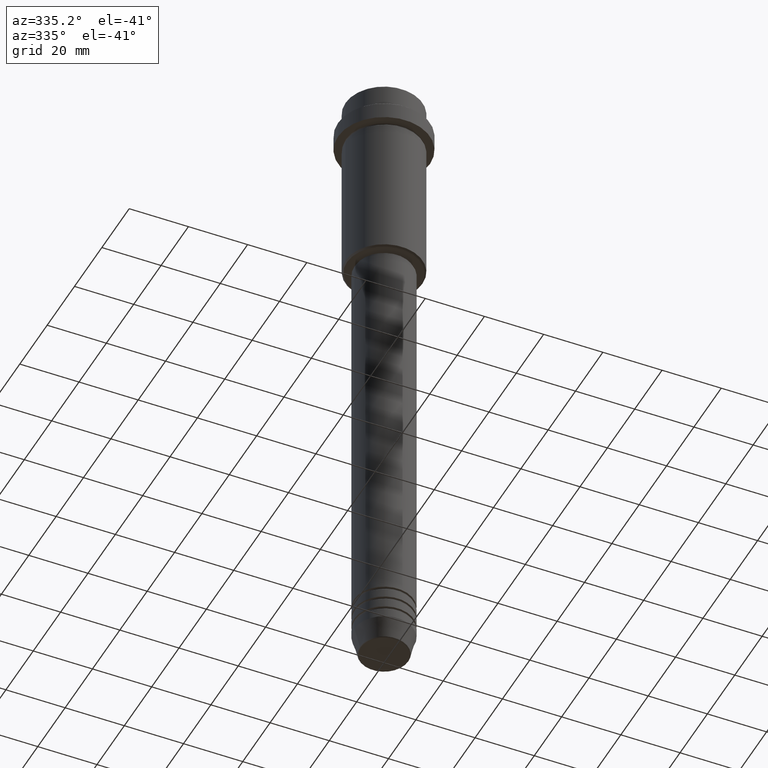
[diagram: clean part render]
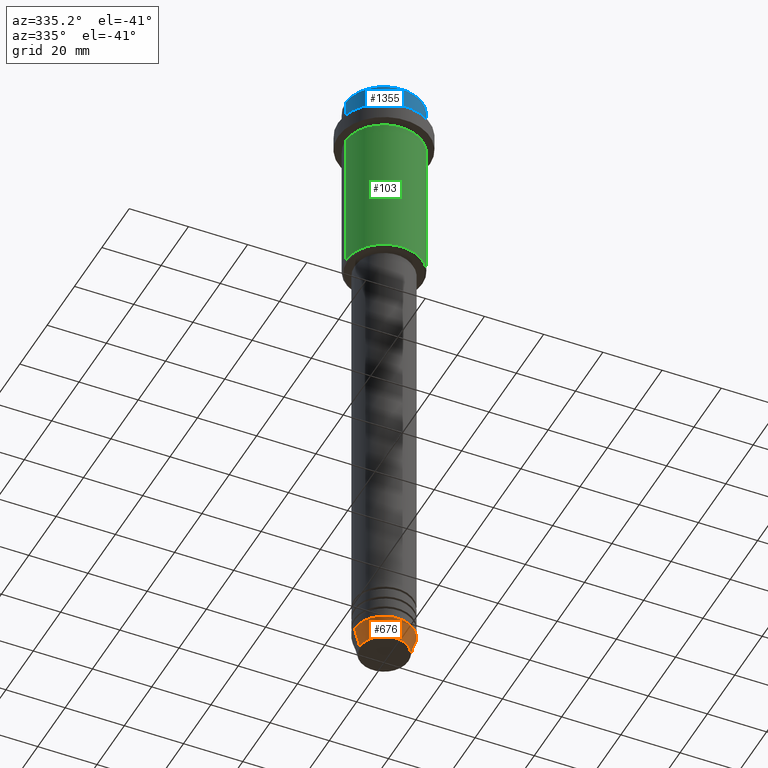
[diagram: same view with three faces highlighted in distinct colors, each labeled with its STEP entity id]
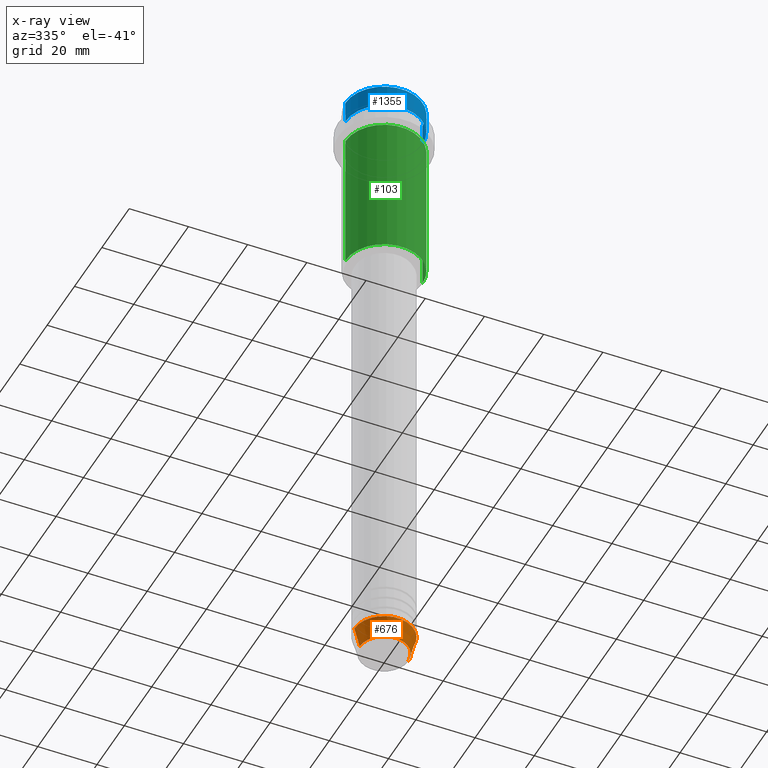
[diagram: x-ray of the same camera — body ghosted, the three highlighted faces saturated]
A machine part, auxiliary view with three faces highlighted in distinct colors.
The next image is the same camera in x-ray (body ghosted, the three faces saturated) — at least one of them is partly hidden behind the body in this view.
Their STEP definitions:

[orange] entity #676 — the highlighted conical surface has half-angle 15 deg.
#16 = AXIS2_PLACEMENT_3D ( 'NONE', #368, #1016, #1325 ) ;
#21 = CARTESIAN_POINT ( 'NONE',  ( 0.000000000000000000, 0.000000000000000000, -212.9999999999999716 ) ) ;
#97 = EDGE_CURVE ( 'NONE', #1226, #273, #600, .T. ) ;
#117 = FACE_OUTER_BOUND ( 'NONE', #973, .T. ) ;
#162 = DIRECTION ( 'NONE',  ( 0.2588190451025214611, 0.000000000000000000, 0.9659258262890679791 ) ) ;
#189 = DIRECTION ( 'NONE',  ( -0.000000000000000000, -0.000000000000000000, 1.000000000000000000 ) ) ;
#273 = VERTEX_POINT ( 'NONE', #342 ) ;
#296 = VECTOR ( 'NONE', #823, 1000.000000000000114 ) ;
#342 = CARTESIAN_POINT ( 'NONE',  ( 10.00000000000000000, 0.000000000000000000, -212.9999999999999716 ) ) ;
#345 = DIRECTION ( 'NONE',  ( 1.000000000000000000, 0.000000000000000000, 0.000000000000000000 ) ) ;
#368 = CARTESIAN_POINT ( 'NONE',  ( 0.000000000000000000, 0.000000000000000000, -219.6294095225512137 ) ) ;
#379 = CARTESIAN_POINT ( 'NONE',  ( -10.00000000000000000, 1.224646799147353256E-15, -212.9999999999999716 ) ) ;
#389 = ORIENTED_EDGE ( 'NONE', *, *, #559, .F. ) ;
#447 = ORIENTED_EDGE ( 'NONE', *, *, #97, .T. ) ;
#472 = ORIENTED_EDGE ( 'NONE', *, *, #1259, .F. ) ;
#478 = AXIS2_PLACEMENT_3D ( 'NONE', #21, #759, #345 ) ;
#544 = CIRCLE ( 'NONE', #1335, 10.00000000000000000 ) ;
#559 = EDGE_CURVE ( 'NONE', #866, #273, #544, .T. ) ;
#589 = VECTOR ( 'NONE', #162, 1000.000000000000114 ) ;
#600 = LINE ( 'NONE', #1352, #589 ) ;
#676 = ADVANCED_FACE ( 'NONE', ( #117 ), #1409, .T. ) ;
#759 = DIRECTION ( 'NONE',  ( -0.000000000000000000, -0.000000000000000000, 1.000000000000000000 ) ) ;
#823 = DIRECTION ( 'NONE',  ( -0.2588190451025214611, 3.169619151431774186E-17, 0.9659258262890679791 ) ) ;
#866 = VERTEX_POINT ( 'NONE', #379 ) ;
#973 = EDGE_LOOP ( 'NONE', ( #472, #1157, #447, #389 ) ) ;
#994 = CARTESIAN_POINT ( 'NONE',  ( -8.223655072137189492, 1.115877042642911856E-15, -219.6294095225512137 ) ) ;
#1016 = DIRECTION ( 'NONE',  ( -0.000000000000000000, -0.000000000000000000, 1.000000000000000000 ) ) ;
#1157 = ORIENTED_EDGE ( 'NONE', *, *, #1373, .T. ) ;
#1168 = CARTESIAN_POINT ( 'NONE',  ( 8.223655072137189492, 0.000000000000000000, -219.6294095225512137 ) ) ;
#1177 = CARTESIAN_POINT ( 'NONE',  ( 0.000000000000000000, 0.000000000000000000, -212.9999999999999716 ) ) ;
#1226 = VERTEX_POINT ( 'NONE', #1168 ) ;
#1248 = CIRCLE ( 'NONE', #16, 8.223655072137189492 ) ;
#1259 = EDGE_CURVE ( 'NONE', #1376, #866, #1389, .T. ) ;
#1281 = CARTESIAN_POINT ( 'NONE',  ( -10.00000000000000000, 1.224646799147353256E-15, -212.9999999999999716 ) ) ;
#1325 = DIRECTION ( 'NONE',  ( 1.000000000000000000, 0.000000000000000000, 0.000000000000000000 ) ) ;
#1335 = AXIS2_PLACEMENT_3D ( 'NONE', #1177, #189, #1393 ) ;
#1352 = CARTESIAN_POINT ( 'NONE',  ( 10.00000000000000000, 0.000000000000000000, -212.9999999999999716 ) ) ;
#1373 = EDGE_CURVE ( 'NONE', #1376, #1226, #1248, .T. ) ;
#1376 = VERTEX_POINT ( 'NONE', #994 ) ;
#1389 = LINE ( 'NONE', #1281, #296 ) ;
#1393 = DIRECTION ( 'NONE',  ( 1.000000000000000000, 0.000000000000000000, 0.000000000000000000 ) ) ;
#1409 = CONICAL_SURFACE ( 'NONE', #478, 10.00000000000000000, 0.2617993877991502405 ) ;

[blue] entity #1355 — the highlighted cylindrical surface (partial cylindrical patch) has radius 13 mm, axis along (-0, -0, 1).
#31 = AXIS2_PLACEMENT_3D ( 'NONE', #1351, #1142, #604 ) ;
#35 = DIRECTION ( 'NONE',  ( 1.000000000000000000, 0.000000000000000000, 0.000000000000000000 ) ) ;
#46 = EDGE_CURVE ( 'NONE', #558, #1021, #431, .T. ) ;
#73 = CARTESIAN_POINT ( 'NONE',  ( -12.99999999999999822, 1.592040838891558898E-15, -0.4999999999999761302 ) ) ;
#188 = VERTEX_POINT ( 'NONE', #1055 ) ;
#221 = CIRCLE ( 'NONE', #31, 12.99999999999999822 ) ;
#298 = EDGE_CURVE ( 'NONE', #188, #663, #993, .T. ) ;
#347 = DIRECTION ( 'NONE',  ( -0.000000000000000000, -0.000000000000000000, 1.000000000000000000 ) ) ;
#408 = EDGE_CURVE ( 'NONE', #188, #558, #1291, .T. ) ;
#421 = CARTESIAN_POINT ( 'NONE',  ( -12.99999999999999822, 1.592040838891558898E-15, 0.000000000000000000 ) ) ;
#431 = LINE ( 'NONE', #1189, #705 ) ;
#463 = CARTESIAN_POINT ( 'NONE',  ( 0.000000000000000000, 0.000000000000000000, 0.000000000000000000 ) ) ;
#475 = VECTOR ( 'NONE', #1201, 1000.000000000000000 ) ;
#502 = ORIENTED_EDGE ( 'NONE', *, *, #408, .T. ) ;
#516 = CARTESIAN_POINT ( 'NONE',  ( 12.99999999999999822, 0.000000000000000000, -0.4999999999999761302 ) ) ;
#521 = AXIS2_PLACEMENT_3D ( 'NONE', #1347, #347, #1230 ) ;
#547 = ORIENTED_EDGE ( 'NONE', *, *, #298, .F. ) ;
#558 = VERTEX_POINT ( 'NONE', #744 ) ;
#604 = DIRECTION ( 'NONE',  ( 1.000000000000000000, 0.000000000000000000, 0.000000000000000000 ) ) ;
#621 = AXIS2_PLACEMENT_3D ( 'NONE', #463, #692, #35 ) ;
#663 = VERTEX_POINT ( 'NONE', #73 ) ;
#692 = DIRECTION ( 'NONE',  ( -0.000000000000000000, -0.000000000000000000, 1.000000000000000000 ) ) ;
#705 = VECTOR ( 'NONE', #864, 1000.000000000000000 ) ;
#743 = ORIENTED_EDGE ( 'NONE', *, *, #46, .T. ) ;
#744 = CARTESIAN_POINT ( 'NONE',  ( 12.99999999999999822, 0.000000000000000000, -7.999999999999998224 ) ) ;
#864 = DIRECTION ( 'NONE',  ( -0.000000000000000000, -0.000000000000000000, 1.000000000000000000 ) ) ;
#891 = EDGE_CURVE ( 'NONE', #1021, #663, #221, .T. ) ;
#906 = CYLINDRICAL_SURFACE ( 'NONE', #621, 12.99999999999999822 ) ;
#939 = ORIENTED_EDGE ( 'NONE', *, *, #891, .T. ) ;
#981 = EDGE_LOOP ( 'NONE', ( #547, #502, #743, #939 ) ) ;
#993 = LINE ( 'NONE', #421, #475 ) ;
#1021 = VERTEX_POINT ( 'NONE', #516 ) ;
#1055 = CARTESIAN_POINT ( 'NONE',  ( -12.99999999999999822, 1.592040838891558898E-15, -7.999999999999998224 ) ) ;
#1142 = DIRECTION ( 'NONE',  ( 0.000000000000000000, 0.000000000000000000, -1.000000000000000000 ) ) ;
#1189 = CARTESIAN_POINT ( 'NONE',  ( 12.99999999999999822, 0.000000000000000000, 0.000000000000000000 ) ) ;
#1201 = DIRECTION ( 'NONE',  ( -0.000000000000000000, -0.000000000000000000, 1.000000000000000000 ) ) ;
#1230 = DIRECTION ( 'NONE',  ( 1.000000000000000000, 0.000000000000000000, 0.000000000000000000 ) ) ;
#1291 = CIRCLE ( 'NONE', #521, 12.99999999999999822 ) ;
#1345 = FACE_OUTER_BOUND ( 'NONE', #981, .T. ) ;
#1347 = CARTESIAN_POINT ( 'NONE',  ( 0.000000000000000000, 0.000000000000000000, -7.999999999999998224 ) ) ;
#1351 = CARTESIAN_POINT ( 'NONE',  ( 0.000000000000000000, 0.000000000000000000, -0.4999999999999761302 ) ) ;
#1355 = ADVANCED_FACE ( 'NONE', ( #1345 ), #906, .T. ) ;

[green] entity #103 — the highlighted cylindrical surface (partial cylindrical patch) has radius 13 mm, axis along (-0, -0, 1).
#9 = VERTEX_POINT ( 'NONE', #69 ) ;
#69 = CARTESIAN_POINT ( 'NONE',  ( -13.00000000000000000, 1.592040838891559095E-15, -64.49999999999997158 ) ) ;
#103 = ADVANCED_FACE ( 'NONE', ( #1143 ), #617, .T. ) ;
#105 = ORIENTED_EDGE ( 'NONE', *, *, #903, .T. ) ;
#150 = VECTOR ( 'NONE', #713, 1000.000000000000000 ) ;
#154 = CARTESIAN_POINT ( 'NONE',  ( 0.000000000000000000, 0.000000000000000000, -64.49999999999997158 ) ) ;
#166 = LINE ( 'NONE', #474, #150 ) ;
#183 = CARTESIAN_POINT ( 'NONE',  ( 13.00000000000000000, 0.000000000000000000, -16.00000000000000000 ) ) ;
#208 = DIRECTION ( 'NONE',  ( -0.000000000000000000, -0.000000000000000000, 1.000000000000000000 ) ) ;
#314 = VERTEX_POINT ( 'NONE', #1080 ) ;
#333 = EDGE_LOOP ( 'NONE', ( #1197, #1087, #105, #400 ) ) ;
#392 = DIRECTION ( 'NONE',  ( 1.000000000000000000, 0.000000000000000000, 0.000000000000000000 ) ) ;
#400 = ORIENTED_EDGE ( 'NONE', *, *, #546, .F. ) ;
#474 = CARTESIAN_POINT ( 'NONE',  ( 13.00000000000000000, 0.000000000000000000, 0.000000000000000000 ) ) ;
#534 = DIRECTION ( 'NONE',  ( -0.000000000000000000, -0.000000000000000000, 1.000000000000000000 ) ) ;
#546 = EDGE_CURVE ( 'NONE', #314, #1088, #570, .T. ) ;
#570 = CIRCLE ( 'NONE', #1357, 13.00000000000000000 ) ;
#617 = CYLINDRICAL_SURFACE ( 'NONE', #1022, 13.00000000000000000 ) ;
#626 = EDGE_CURVE ( 'NONE', #9, #314, #738, .T. ) ;
#688 = VECTOR ( 'NONE', #208, 1000.000000000000000 ) ;
#713 = DIRECTION ( 'NONE',  ( -0.000000000000000000, -0.000000000000000000, 1.000000000000000000 ) ) ;
#738 = LINE ( 'NONE', #1279, #688 ) ;
#853 = EDGE_CURVE ( 'NONE', #9, #887, #1160, .T. ) ;
#887 = VERTEX_POINT ( 'NONE', #921 ) ;
#903 = EDGE_CURVE ( 'NONE', #887, #1088, #166, .T. ) ;
#915 = DIRECTION ( 'NONE',  ( -0.000000000000000000, -0.000000000000000000, 1.000000000000000000 ) ) ;
#921 = CARTESIAN_POINT ( 'NONE',  ( 13.00000000000000000, 0.000000000000000000, -64.49999999999997158 ) ) ;
#1022 = AXIS2_PLACEMENT_3D ( 'NONE', #1036, #1041, #392 ) ;
#1036 = CARTESIAN_POINT ( 'NONE',  ( 0.000000000000000000, 0.000000000000000000, 0.000000000000000000 ) ) ;
#1037 = DIRECTION ( 'NONE',  ( -1.000000000000000000, 0.000000000000000000, 0.000000000000000000 ) ) ;
#1041 = DIRECTION ( 'NONE',  ( -0.000000000000000000, -0.000000000000000000, 1.000000000000000000 ) ) ;
#1077 = CARTESIAN_POINT ( 'NONE',  ( 0.000000000000000000, 0.000000000000000000, -16.00000000000000000 ) ) ;
#1080 = CARTESIAN_POINT ( 'NONE',  ( -13.00000000000000000, 1.592040838891559095E-15, -16.00000000000000000 ) ) ;
#1087 = ORIENTED_EDGE ( 'NONE', *, *, #853, .T. ) ;
#1088 = VERTEX_POINT ( 'NONE', #183 ) ;
#1136 = AXIS2_PLACEMENT_3D ( 'NONE', #154, #915, #1037 ) ;
#1143 = FACE_OUTER_BOUND ( 'NONE', #333, .T. ) ;
#1160 = CIRCLE ( 'NONE', #1136, 13.00000000000000000 ) ;
#1197 = ORIENTED_EDGE ( 'NONE', *, *, #626, .F. ) ;
#1279 = CARTESIAN_POINT ( 'NONE',  ( -13.00000000000000000, 1.592040838891559095E-15, 0.000000000000000000 ) ) ;
#1357 = AXIS2_PLACEMENT_3D ( 'NONE', #1077, #534, #1405 ) ;
#1405 = DIRECTION ( 'NONE',  ( 1.000000000000000000, 0.000000000000000000, 0.000000000000000000 ) ) ;